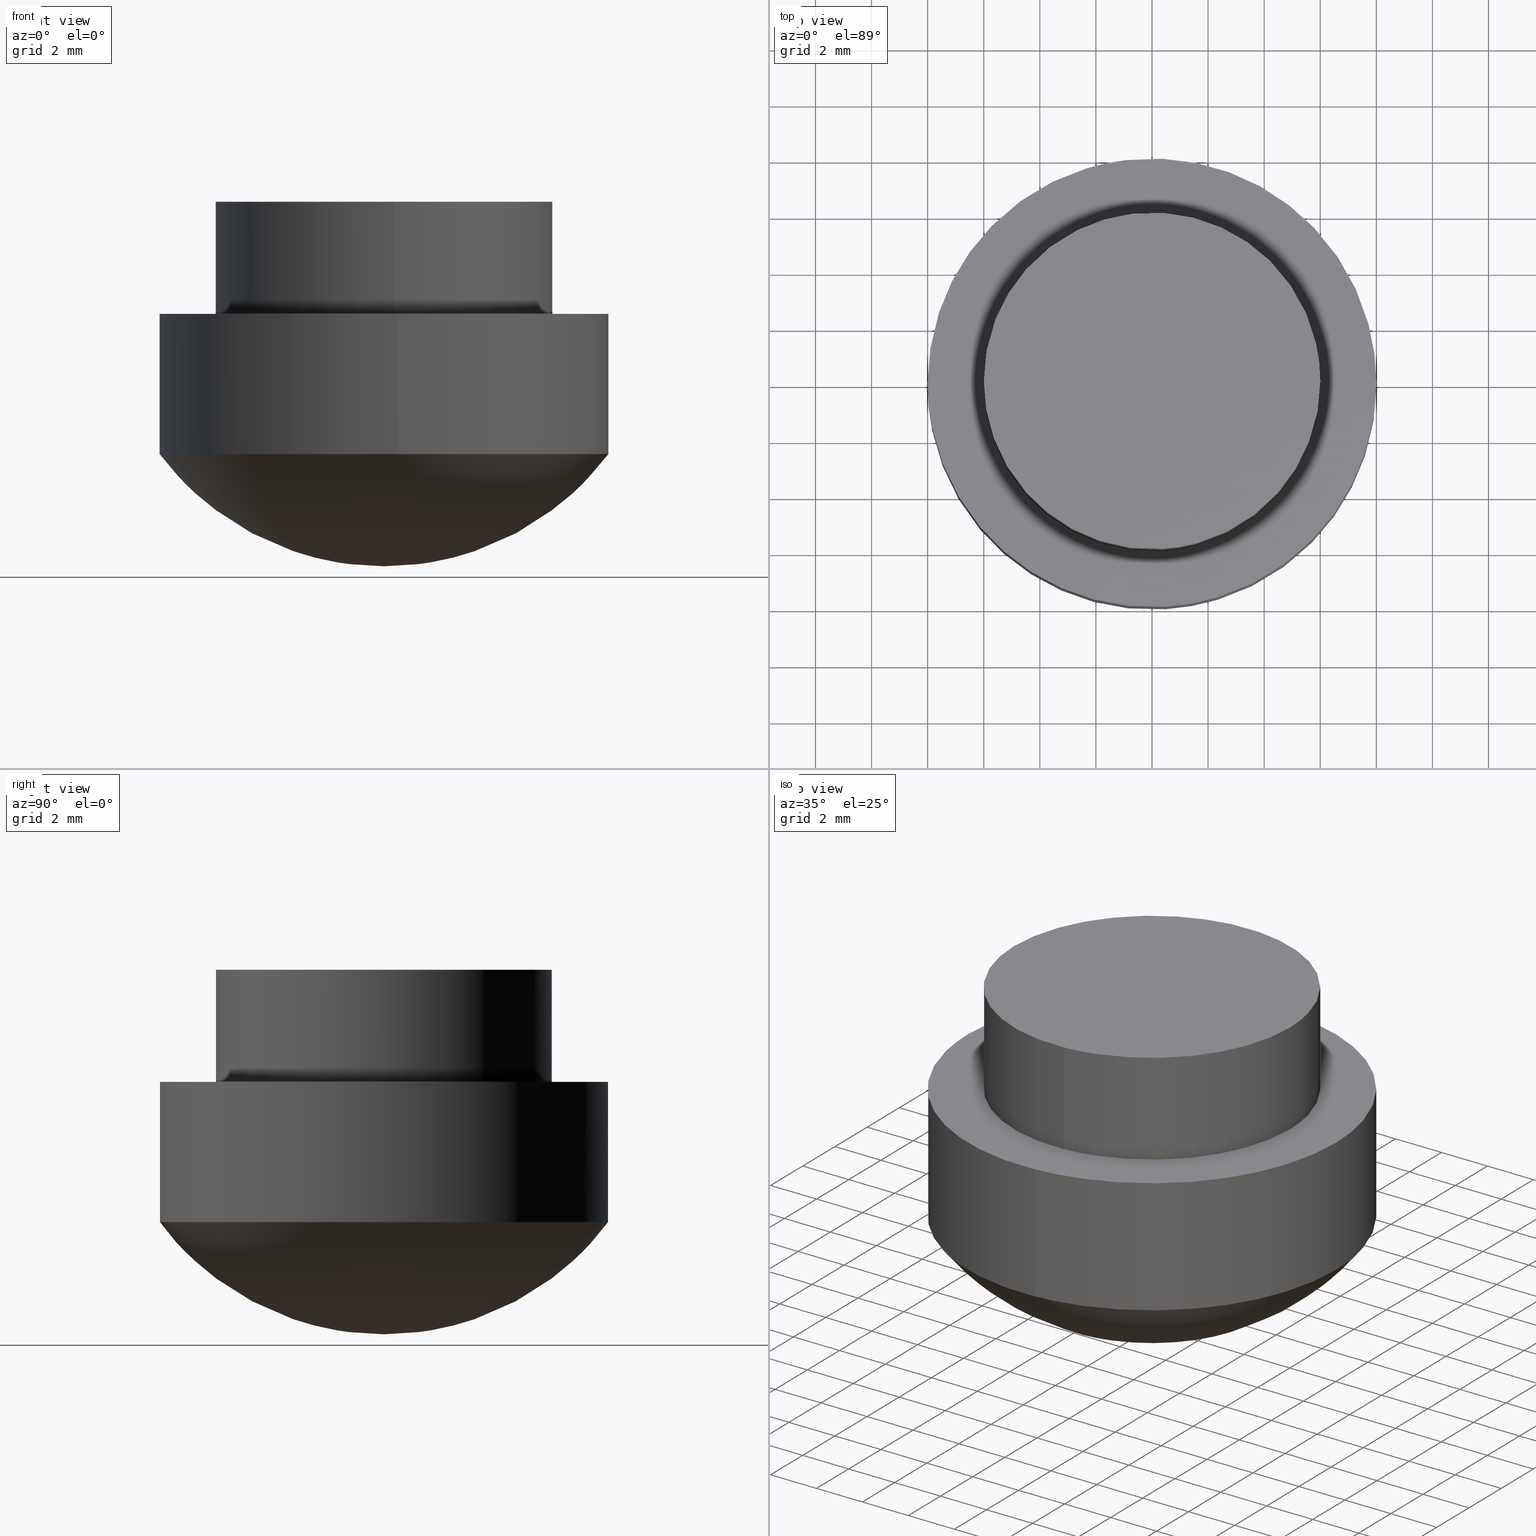
[diagram: canonical four-view strip — front | top / right | iso, engineering-drawing reading convention]
A machine part, canonical four-view strip (front | top / right | iso — engineering-drawing reading convention). The complete STEP part file that produces these views, byte-faithful:
ISO-10303-21;
HEADER;
/****************************************************************
 * Generated by software with PDE/Lib inside                    *
 * PDElib Version 4.4.1-0003, patched  Thursday August 19 11:58 *
 * International Technegroup Inc. (www.iti-oh.com)              *
 ****************************************************************/
FILE_DESCRIPTION((''),'2;1');
FILE_NAME('','2005-12-14T13:37:24',(''),(''),'','CADfix','');
FILE_SCHEMA(('AUTOMOTIVE_DESIGN'));
ENDSEC;
DATA;
#5=APPLICATION_CONTEXT('automotive design');
#6=APPLICATION_PROTOCOL_DEFINITION('Draft International Standard','automotive_design',1998,#5);
#7=PRODUCT_CONTEXT('None',#5,'mechanical');
#8=PRODUCT('rubber foot','','None',(#7));
#9=PRODUCT_RELATED_PRODUCT_CATEGORY('part','description',(#8));
#10=PRODUCT_DEFINITION_FORMATION('None','None',#8);
#11=PRODUCT_DEFINITION_CONTEXT('part definition',#5,'design');
#12=PRODUCT_DEFINITION('None','None',#10,#11);
#18=(NAMED_UNIT(*)PLANE_ANGLE_UNIT()SI_UNIT($,.RADIAN.));
#19=DIMENSIONAL_EXPONENTS(0.0,0.0,0.0,0.0,0.0,0.0,0.0);
#20=PLANE_ANGLE_MEASURE_WITH_UNIT(PLANE_ANGLE_MEASURE(0.017453292500000),#18);
#24=(CONVERSION_BASED_UNIT('DEGREE',#20)NAMED_UNIT(#19)PLANE_ANGLE_UNIT());
#28=(NAMED_UNIT(*)SI_UNIT($,.STERADIAN.)SOLID_ANGLE_UNIT());
#32=(LENGTH_UNIT()NAMED_UNIT(*)SI_UNIT(.MILLI.,.METRE.));
#34=UNCERTAINTY_MEASURE_WITH_UNIT(LENGTH_MEASURE(0.001000000000000),#32,'DISTANCE_ACCURACY_VALUE','');
#36=(GEOMETRIC_REPRESENTATION_CONTEXT(3)GLOBAL_UNCERTAINTY_ASSIGNED_CONTEXT((#34))GLOBAL_UNIT_ASSIGNED_CONTEXT((#24,#28,#32))REPRESENTATION_CONTEXT('None','None'));
#37=AXIS2_PLACEMENT_3D('',#38,#39,#40);
#38=CARTESIAN_POINT('',(0.0,0.0,0.0));
#39=DIRECTION('',(0.0,0.0,1.0));
#40=DIRECTION('',(1.0,0.0,0.0));
#41=ADVANCED_BREP_SHAPE_REPRESENTATION('',(#37,#478),#36);
#42=PRODUCT_DEFINITION_SHAPE('','',#12);
#43=SHAPE_DEFINITION_REPRESENTATION(#42,#41);
#44=CARTESIAN_POINT('',(-0.708205407940551,5.958057158181998,13.100000000000000));
#45=CARTESIAN_POINT('',(-0.537688371827866,5.978325692691634,13.100000000000000));
#46=CARTESIAN_POINT('',(-0.366291237209142,5.988808790531200,13.100000000000000));
#47=CARTESIAN_POINT('',(5.622517553322059,6.355100027740342,13.100000000000001));
#48=CARTESIAN_POINT('',(5.988808790531200,0.366291237209142,13.100000000000000));
#49=CARTESIAN_POINT('',(6.355100027740342,-5.622517553322059,13.100000000000001));
#50=CARTESIAN_POINT('',(0.366291237209142,-5.988808790531200,13.100000000000000));
#51=CARTESIAN_POINT('',(-0.708205407940551,5.958057158181998,8.897499999999997));
#52=CARTESIAN_POINT('',(-0.537688371827866,5.978325692691634,8.897499999999997));
#53=CARTESIAN_POINT('',(-0.366291237209142,5.988808790531200,8.897499999999997));
#54=CARTESIAN_POINT('',(5.622517553322059,6.355100027740342,8.897499999999997));
#55=CARTESIAN_POINT('',(5.988808790531200,0.366291237209142,8.897499999999997));
#56=CARTESIAN_POINT('',(6.355100027740342,-5.622517553322059,8.897499999999997));
#57=CARTESIAN_POINT('',(0.366291237209142,-5.988808790531200,8.897499999999997));
#65=(BOUNDED_SURFACE()B_SPLINE_SURFACE(2,1,((#44,#51),(#45,#52),(#46,#53),(#47,#54),(#48,#55),(#49,#56),(#50,#57)),.UNSPECIFIED.,.F.,.F.,.U.)B_SPLINE_SURFACE_WITH_KNOTS((3,2,2,3),(2,2),(0.0,0.397645019878172,10.338770516832451,20.279896013786729),(0.0,4.202500000000004),.UNSPECIFIED.)GEOMETRIC_REPRESENTATION_ITEM()RATIONAL_B_SPLINE_SURFACE(((0.977505800795127,0.977505800795127),(0.988284271247462,0.988284271247462),(1.0,1.0),(0.707106781186548,0.707106781186548),(1.0,1.0),(0.707106781186548,0.707106781186548),(1.0,1.0)))REPRESENTATION_ITEM('')SURFACE());
#66=CARTESIAN_POINT('',(-0.708199855991939,5.958057818110003,13.0));
#67=VERTEX_POINT('',#66);
#68=CARTESIAN_POINT('',(6.0,0.0,13.0));
#69=VERTEX_POINT('',#68);
#70=CARTESIAN_POINT('',(-0.708199855991939,5.958057818110003,13.000000000000004));
#71=CARTESIAN_POINT('',(-0.355341912590297,6.0,13.000000000000004));
#72=CARTESIAN_POINT('',(0.0,6.0,13.0));
#73=CARTESIAN_POINT('',(6.0,6.0,13.000000000000002));
#74=CARTESIAN_POINT('',(6.0,0.0,13.0));
#82=(BOUNDED_CURVE()B_SPLINE_CURVE(2,(#70,#71,#72,#73,#74),.UNSPECIFIED.,.F.,.U.)B_SPLINE_CURVE_WITH_KNOTS((3,2,3),(0.229562630999432,0.250000000000000,0.500000000000000),.UNSPECIFIED.)CURVE()GEOMETRIC_REPRESENTATION_ITEM()RATIONAL_B_SPLINE_CURVE((0.956027062862787,0.976056132837381,1.0,0.707106781186548,1.0))REPRESENTATION_ITEM(''));
#83=EDGE_CURVE('',#67,#69,#82,.T.);
#84=ORIENTED_EDGE('',*,*,#83,.T.);
#85=CARTESIAN_POINT('',(0.366286036583908,-5.988809108610534,13.000000000000020));
#86=VERTEX_POINT('',#85);
#87=CARTESIAN_POINT('',(6.0,0.0,13.0));
#88=CARTESIAN_POINT('',(6.0,-5.644241311996911,13.0));
#89=CARTESIAN_POINT('',(0.366286036583908,-5.988809108610534,13.000000000000021));
#97=(BOUNDED_CURVE()B_SPLINE_CURVE(2,(#87,#88,#89),.UNSPECIFIED.,.F.,.U.)B_SPLINE_CURVE_WITH_KNOTS((3,3),(0.500000000000000,0.739333112079995),.UNSPECIFIED.)CURVE()GEOMETRIC_REPRESENTATION_ITEM()RATIONAL_B_SPLINE_CURVE((1.0,0.719603817736998,0.976072362804825))REPRESENTATION_ITEM(''));
#98=EDGE_CURVE('',#69,#86,#97,.T.);
#99=ORIENTED_EDGE('',*,*,#98,.T.);
#100=CARTESIAN_POINT('',(0.366286099267417,-5.988809104776754,9.0));
#101=VERTEX_POINT('',#100);
#102=CARTESIAN_POINT('',(0.366286036583908,-5.988809108610534,13.000000000000020));
#103=CARTESIAN_POINT('',(0.366286099267417,-5.988809104776754,9.0));
#104=QUASI_UNIFORM_CURVE('',1,(#102,#103),.UNSPECIFIED.,.F.,.U.);
#105=EDGE_CURVE('',#86,#101,#104,.T.);
#106=ORIENTED_EDGE('',*,*,#105,.T.);
#107=CARTESIAN_POINT('',(6.0,0.0,9.0));
#108=VERTEX_POINT('',#107);
#109=CARTESIAN_POINT('',(6.0,0.0,9.0));
#110=CARTESIAN_POINT('',(6.000000000000001,-5.644241252809525,9.000000000000002));
#111=CARTESIAN_POINT('',(0.366286099267417,-5.988809104776754,9.0));
#119=(BOUNDED_CURVE()B_SPLINE_CURVE(2,(#109,#110,#111),.UNSPECIFIED.,.F.,.U.)B_SPLINE_CURVE_WITH_KNOTS((3,3),(0.500000000000000,0.739333110273986),.UNSPECIFIED.)CURVE()GEOMETRIC_REPRESENTATION_ITEM()RATIONAL_B_SPLINE_CURVE((1.0,0.719603819852869,0.976072358934200))REPRESENTATION_ITEM(''));
#120=EDGE_CURVE('',#108,#101,#119,.T.);
#121=ORIENTED_EDGE('',*,*,#120,.F.);
#122=CARTESIAN_POINT('',(-0.708199922886695,5.958057810158673,9.0));
#123=VERTEX_POINT('',#122);
#124=CARTESIAN_POINT('',(-0.708199922886695,5.958057810158673,9.0));
#125=CARTESIAN_POINT('',(-0.355341946391267,6.000000000000001,9.000000000000002));
#126=CARTESIAN_POINT('',(0.0,6.0,9.0));
#127=CARTESIAN_POINT('',(6.0,6.0,9.000000000000002));
#128=CARTESIAN_POINT('',(6.0,0.0,9.0));
#136=(BOUNDED_CURVE()B_SPLINE_CURVE(2,(#124,#125,#126,#127,#128),.UNSPECIFIED.,.F.,.U.)B_SPLINE_CURVE_WITH_KNOTS((3,2,3),(0.229562629101929,0.250000000000000,0.500000000000000),.UNSPECIFIED.)CURVE()GEOMETRIC_REPRESENTATION_ITEM()RATIONAL_B_SPLINE_CURVE((0.956027059143597,0.976056130614318,1.0,0.707106781186548,1.0))REPRESENTATION_ITEM(''));
#137=EDGE_CURVE('',#123,#108,#136,.T.);
#138=ORIENTED_EDGE('',*,*,#137,.F.);
#139=CARTESIAN_POINT('',(-0.708199855991939,5.958057818110003,13.0));
#140=CARTESIAN_POINT('',(-0.708199922886695,5.958057810158673,9.0));
#141=QUASI_UNIFORM_CURVE('',1,(#139,#140),.UNSPECIFIED.,.F.,.U.);
#142=EDGE_CURVE('',#67,#123,#141,.T.);
#143=ORIENTED_EDGE('',*,*,#142,.F.);
#144=EDGE_LOOP('',(#84,#99,#106,#121,#138,#143));
#145=FACE_OUTER_BOUND('',#144,.T.);
#146=ADVANCED_FACE('',(#145),#65,.T.);
#147=CARTESIAN_POINT('',(0.366291237209142,-5.988808790531200,13.100000000000000));
#148=CARTESIAN_POINT('',(-5.622517553322059,-6.355100027740342,13.100000000000001));
#149=CARTESIAN_POINT('',(-5.988808790531200,-0.366291237209142,13.100000000000000));
#150=CARTESIAN_POINT('',(-6.334717180395164,5.289260945037006,13.100000000000001));
#151=CARTESIAN_POINT('',(-0.708205407940551,5.958057158181998,13.100000000000000));
#152=CARTESIAN_POINT('',(0.366291237209142,-5.988808790531200,8.897499999999997));
#153=CARTESIAN_POINT('',(-5.622517553322059,-6.355100027740342,8.897499999999997));
#154=CARTESIAN_POINT('',(-5.988808790531200,-0.366291237209142,8.897499999999997));
#155=CARTESIAN_POINT('',(-6.334717180395164,5.289260945037006,8.897499999999997));
#156=CARTESIAN_POINT('',(-0.708205407940551,5.958057158181998,8.897499999999997));
#164=(BOUNDED_SURFACE()B_SPLINE_SURFACE(2,1,((#147,#152),(#148,#153),(#149,#154),(#150,#155),(#151,#156)),.UNSPECIFIED.,.F.,.F.,.U.)B_SPLINE_SURFACE_WITH_KNOTS((3,2,3),(2,2),(0.0,9.941125496954278,19.484605974030391),(0.0,4.202500000000004),.UNSPECIFIED.)GEOMETRIC_REPRESENTATION_ITEM()RATIONAL_B_SPLINE_SURFACE(((1.0,1.0),(0.707106781186548,0.707106781186548),(1.0,1.0),(0.718822509939086,0.718822509939086),(0.977505800795127,0.977505800795127)))REPRESENTATION_ITEM('')SURFACE());
#165=CARTESIAN_POINT('',(-6.0,0.0,13.0));
#166=VERTEX_POINT('',#165);
#167=CARTESIAN_POINT('',(-6.0,0.0,13.0));
#168=CARTESIAN_POINT('',(-6.000000000000001,5.329052156480185,13.000000000000002));
#169=CARTESIAN_POINT('',(-0.708199855991939,5.958057818110003,13.000000000000004));
#177=(BOUNDED_CURVE()B_SPLINE_CURVE(2,(#167,#168,#169),.UNSPECIFIED.,.F.,.U.)B_SPLINE_CURVE_WITH_KNOTS((3,3),(0.0,0.229562630999432),.UNSPECIFIED.)CURVE()GEOMETRIC_REPRESENTATION_ITEM()RATIONAL_B_SPLINE_CURVE((1.0,0.731050648349166,0.956027062862787))REPRESENTATION_ITEM(''));
#178=EDGE_CURVE('',#166,#67,#177,.T.);
#179=ORIENTED_EDGE('',*,*,#178,.T.);
#180=ORIENTED_EDGE('',*,*,#142,.T.);
#181=CARTESIAN_POINT('',(-6.0,0.0,9.0));
#182=VERTEX_POINT('',#181);
#183=CARTESIAN_POINT('',(-6.0,0.0,9.0));
#184=CARTESIAN_POINT('',(-6.000000000000001,5.329052096226471,9.000000000000002));
#185=CARTESIAN_POINT('',(-0.708199922886695,5.958057810158673,9.0));
#193=(BOUNDED_CURVE()B_SPLINE_CURVE(2,(#183,#184,#185),.UNSPECIFIED.,.F.,.U.)B_SPLINE_CURVE_WITH_KNOTS((3,3),(0.0,0.229562629101929),.UNSPECIFIED.)CURVE()GEOMETRIC_REPRESENTATION_ITEM()RATIONAL_B_SPLINE_CURVE((1.0,0.731050650572230,0.956027059143597))REPRESENTATION_ITEM(''));
#194=EDGE_CURVE('',#182,#123,#193,.T.);
#195=ORIENTED_EDGE('',*,*,#194,.F.);
#196=CARTESIAN_POINT('',(0.366286099267417,-5.988809104776754,9.0));
#197=CARTESIAN_POINT('',(0.183314003617696,-6.0,9.0));
#198=CARTESIAN_POINT('',(0.0,-6.0,9.0));
#199=CARTESIAN_POINT('',(-6.0,-6.0,9.000000000000002));
#200=CARTESIAN_POINT('',(-6.0,0.0,9.0));
#208=(BOUNDED_CURVE()B_SPLINE_CURVE(2,(#196,#197,#198,#199,#200),.UNSPECIFIED.,.F.,.U.)B_SPLINE_CURVE_WITH_KNOTS((3,2,3),(0.739333110273986,0.750000000000000,1.0),.UNSPECIFIED.)CURVE()GEOMETRIC_REPRESENTATION_ITEM()RATIONAL_B_SPLINE_CURVE((0.976072358934200,0.987502961333678,1.0,0.707106781186548,1.0))REPRESENTATION_ITEM(''));
#209=EDGE_CURVE('',#101,#182,#208,.T.);
#210=ORIENTED_EDGE('',*,*,#209,.F.);
#211=ORIENTED_EDGE('',*,*,#105,.F.);
#212=CARTESIAN_POINT('',(0.366286036583908,-5.988809108610534,13.000000000000021));
#213=CARTESIAN_POINT('',(0.183313972188067,-6.0,13.000000000000002));
#214=CARTESIAN_POINT('',(0.0,-6.0,13.0));
#215=CARTESIAN_POINT('',(-6.0,-6.0,13.000000000000002));
#216=CARTESIAN_POINT('',(-6.0,0.0,13.0));
#224=(BOUNDED_CURVE()B_SPLINE_CURVE(2,(#212,#213,#214,#215,#216),.UNSPECIFIED.,.F.,.U.)B_SPLINE_CURVE_WITH_KNOTS((3,2,3),(0.739333112079995,0.750000000000000,1.0),.UNSPECIFIED.)CURVE()GEOMETRIC_REPRESENTATION_ITEM()RATIONAL_B_SPLINE_CURVE((0.976072362804825,0.987502963449549,1.0,0.707106781186548,1.0))REPRESENTATION_ITEM(''));
#225=EDGE_CURVE('',#86,#166,#224,.T.);
#226=ORIENTED_EDGE('',*,*,#225,.T.);
#227=EDGE_LOOP('',(#179,#180,#195,#210,#211,#226));
#228=FACE_OUTER_BOUND('',#227,.T.);
#229=ADVANCED_FACE('',(#228),#164,.T.);
#230=CARTESIAN_POINT('',(-0.944273875065293,7.944076192495398,9.125000001236240));
#231=CARTESIAN_POINT('',(-0.716917827442045,7.971100905112271,9.125000001236238));
#232=CARTESIAN_POINT('',(-0.488388315146799,7.985078368865961,9.125000001236240));
#233=CARTESIAN_POINT('',(7.496690053719162,8.473466684012760,9.125000001236240));
#234=CARTESIAN_POINT('',(7.985078368865961,0.488388315146799,9.125000001236240));
#235=CARTESIAN_POINT('',(8.473466684012760,-7.496690053719162,9.125000001236240));
#236=CARTESIAN_POINT('',(0.488388315146799,-7.985078368865961,9.125000001236240));
#237=CARTESIAN_POINT('',(-0.944273875065293,7.944076192495398,3.871874949283356));
#238=CARTESIAN_POINT('',(-0.716917827442045,7.971100905112271,3.871874949283356));
#239=CARTESIAN_POINT('',(-0.488388315146799,7.985078368865961,3.871874949283356));
#240=CARTESIAN_POINT('',(7.496690053719162,8.473466684012760,3.871874949283356));
#241=CARTESIAN_POINT('',(7.985078368865961,0.488388315146799,3.871874949283356));
#242=CARTESIAN_POINT('',(8.473466684012760,-7.496690053719162,3.871874949283356));
#243=CARTESIAN_POINT('',(0.488388315146799,-7.985078368865961,3.871874949283356));
#251=(BOUNDED_SURFACE()B_SPLINE_SURFACE(2,1,((#230,#237),(#231,#238),(#232,#239),(#233,#240),(#234,#241),(#235,#242),(#236,#243)),.UNSPECIFIED.,.F.,.F.,.U.)B_SPLINE_SURFACE_WITH_KNOTS((3,2,2,3),(2,2),(0.0,0.530193358608603,13.785027323823661,27.039861289038729),(0.0,5.253125051952884),.UNSPECIFIED.)GEOMETRIC_REPRESENTATION_ITEM()RATIONAL_B_SPLINE_SURFACE(((0.977505800795127,0.977505800795127),(0.988284271247462,0.988284271247462),(1.0,1.0),(0.707106781186548,0.707106781186548),(1.0,1.0),(0.707106781186548,0.707106781186548),(1.0,1.0)))REPRESENTATION_ITEM('')SURFACE());
#252=CARTESIAN_POINT('',(-0.944268818896609,7.944076802831477,8.999999999999961));
#253=VERTEX_POINT('',#252);
#254=CARTESIAN_POINT('',(8.0,0.0,9.0));
#255=VERTEX_POINT('',#254);
#256=CARTESIAN_POINT('',(-0.944268818896609,7.944076802831477,8.999999999999961));
#257=CARTESIAN_POINT('',(-0.473790401851614,8.0,9.0));
#258=CARTESIAN_POINT('',(0.0,8.0,9.0));
#259=CARTESIAN_POINT('',(8.0,8.0,9.000000000000002));
#260=CARTESIAN_POINT('',(8.0,0.0,9.0));
#268=(BOUNDED_CURVE()B_SPLINE_CURVE(2,(#256,#257,#258,#259,#260),.UNSPECIFIED.,.F.,.U.)B_SPLINE_CURVE_WITH_KNOTS((3,2,3),(0.229562581104482,0.250000000000000,0.500000000000000),.UNSPECIFIED.)CURVE()GEOMETRIC_REPRESENTATION_ITEM()RATIONAL_B_SPLINE_CURVE((0.956026965066519,0.976056074381811,1.0,0.707106781186548,1.0))REPRESENTATION_ITEM(''));
#269=EDGE_CURVE('',#253,#255,#268,.T.);
#270=ORIENTED_EDGE('',*,*,#269,.T.);
#271=CARTESIAN_POINT('',(0.488385459123709,-7.985078552835898,8.999999999999979));
#272=VERTEX_POINT('',#271);
#273=CARTESIAN_POINT('',(8.0,0.0,9.0));
#274=CARTESIAN_POINT('',(8.0,-7.525651232509167,9.0));
#275=CARTESIAN_POINT('',(0.488385459123709,-7.985078552835898,8.999999999999979));
#283=(BOUNDED_CURVE()B_SPLINE_CURVE(2,(#273,#274,#275),.UNSPECIFIED.,.F.,.U.)B_SPLINE_CURVE_WITH_KNOTS((3,3),(0.500000000000000,0.739333023969015),.UNSPECIFIED.)CURVE()GEOMETRIC_REPRESENTATION_ITEM()RATIONAL_B_SPLINE_CURVE((1.0,0.719603920965432,0.976072173966049))REPRESENTATION_ITEM(''));
#284=EDGE_CURVE('',#255,#272,#283,.T.);
#285=ORIENTED_EDGE('',*,*,#284,.T.);
#286=CARTESIAN_POINT('',(0.488385492346112,-7.985078532225735,3.999999950550500));
#287=VERTEX_POINT('',#286);
#288=CARTESIAN_POINT('',(0.488385459123709,-7.985078552835898,8.999999999999979));
#289=CARTESIAN_POINT('',(0.488385492346112,-7.985078532225735,3.999999950550500));
#290=QUASI_UNIFORM_CURVE('',1,(#288,#289),.UNSPECIFIED.,.F.,.U.);
#291=EDGE_CURVE('',#272,#287,#290,.T.);
#292=ORIENTED_EDGE('',*,*,#291,.T.);
#293=CARTESIAN_POINT('',(7.999999962912870,0.0,3.999999950550500));
#294=VERTEX_POINT('',#293);
#295=CARTESIAN_POINT('',(7.999999962912870,0.0,3.999999950550500));
#296=CARTESIAN_POINT('',(7.999999962912870,-7.525651165182715,3.999999950550501));
#297=CARTESIAN_POINT('',(0.488385492346112,-7.985078532225735,3.999999950550500));
#305=(BOUNDED_CURVE()B_SPLINE_CURVE(2,(#295,#296,#297),.UNSPECIFIED.,.F.,.U.)B_SPLINE_CURVE_WITH_KNOTS((3,3),(0.500000000000000,0.739333023226661),.UNSPECIFIED.)CURVE()GEOMETRIC_REPRESENTATION_ITEM()RATIONAL_B_SPLINE_CURVE((1.0,0.719603921835154,0.976072172375043))REPRESENTATION_ITEM(''));
#306=EDGE_CURVE('',#294,#287,#305,.T.);
#307=ORIENTED_EDGE('',*,*,#306,.F.);
#308=CARTESIAN_POINT('',(-0.944268877604578,7.944076777179117,3.999999950550500));
#309=VERTEX_POINT('',#308);
#310=CARTESIAN_POINT('',(-0.944268877604578,7.944076777179117,3.999999950550499));
#311=CARTESIAN_POINT('',(-0.473790430425430,7.999999962912871,3.999999950550500));
#312=CARTESIAN_POINT('',(0.0,7.999999962912870,3.999999950550500));
#313=CARTESIAN_POINT('',(7.999999962912870,7.999999962912870,3.999999950550501));
#314=CARTESIAN_POINT('',(7.999999962912870,0.0,3.999999950550500));
#322=(BOUNDED_CURVE()B_SPLINE_CURVE(2,(#310,#311,#312,#313,#314),.UNSPECIFIED.,.F.,.U.)B_SPLINE_CURVE_WITH_KNOTS((3,2,3),(0.229562579808957,0.250000000000000,0.500000000000000),.UNSPECIFIED.)CURVE()GEOMETRIC_REPRESENTATION_ITEM()RATIONAL_B_SPLINE_CURVE((0.956026962527235,0.976056072864010,1.0,0.707106781186548,1.0))REPRESENTATION_ITEM(''));
#323=EDGE_CURVE('',#309,#294,#322,.T.);
#324=ORIENTED_EDGE('',*,*,#323,.F.);
#325=CARTESIAN_POINT('',(-0.944268818896609,7.944076802831477,8.999999999999961));
#326=CARTESIAN_POINT('',(-0.944268877604578,7.944076777179117,3.999999950550500));
#327=QUASI_UNIFORM_CURVE('',1,(#325,#326),.UNSPECIFIED.,.F.,.U.);
#328=EDGE_CURVE('',#253,#309,#327,.T.);
#329=ORIENTED_EDGE('',*,*,#328,.F.);
#330=EDGE_LOOP('',(#270,#285,#292,#307,#324,#329));
#331=FACE_OUTER_BOUND('',#330,.T.);
#332=ADVANCED_FACE('',(#331),#251,.T.);
#333=CARTESIAN_POINT('',(0.488388315146799,-7.985078368865961,9.125000001236240));
#334=CARTESIAN_POINT('',(-7.496690053719162,-8.473466684012760,9.125000001236240));
#335=CARTESIAN_POINT('',(-7.985078368865961,-0.488388315146799,9.125000001236240));
#336=CARTESIAN_POINT('',(-8.446289554282185,7.052347910369052,9.125000001236240));
#337=CARTESIAN_POINT('',(-0.944273875065293,7.944076192495398,9.125000001236240));
#338=CARTESIAN_POINT('',(0.488388315146799,-7.985078368865961,3.871874949283356));
#339=CARTESIAN_POINT('',(-7.496690053719162,-8.473466684012760,3.871874949283356));
#340=CARTESIAN_POINT('',(-7.985078368865961,-0.488388315146799,3.871874949283356));
#341=CARTESIAN_POINT('',(-8.446289554282185,7.052347910369052,3.871874949283356));
#342=CARTESIAN_POINT('',(-0.944273875065293,7.944076192495398,3.871874949283356));
#350=(BOUNDED_SURFACE()B_SPLINE_SURFACE(2,1,((#333,#338),(#334,#339),(#335,#340),(#336,#341),(#337,#342)),.UNSPECIFIED.,.F.,.F.,.U.)B_SPLINE_SURFACE_WITH_KNOTS((3,2,3),(2,2),(0.0,13.254833965215060,25.979474571821520),(0.0,5.253125051952884),.UNSPECIFIED.)GEOMETRIC_REPRESENTATION_ITEM()RATIONAL_B_SPLINE_SURFACE(((1.0,1.0),(0.707106781186548,0.707106781186548),(1.0,1.0),(0.718822509939086,0.718822509939086),(0.977505800795127,0.977505800795127)))REPRESENTATION_ITEM('')SURFACE());
#351=CARTESIAN_POINT('',(-8.0,0.0,9.0));
#352=VERTEX_POINT('',#351);
#353=CARTESIAN_POINT('',(-8.0,0.0,9.0));
#354=CARTESIAN_POINT('',(-8.0,7.105400762807472,9.0));
#355=CARTESIAN_POINT('',(-0.944268818896609,7.944076802831477,8.999999999999961));
#363=(BOUNDED_CURVE()B_SPLINE_CURVE(2,(#353,#354,#355),.UNSPECIFIED.,.F.,.U.)B_SPLINE_CURVE_WITH_KNOTS((3,3),(0.0,0.229562581104482),.UNSPECIFIED.)CURVE()GEOMETRIC_REPRESENTATION_ITEM()RATIONAL_B_SPLINE_CURVE((1.0,0.731050706804736,0.956026965066519))REPRESENTATION_ITEM(''));
#364=EDGE_CURVE('',#352,#253,#363,.T.);
#365=ORIENTED_EDGE('',*,*,#364,.T.);
#366=ORIENTED_EDGE('',*,*,#328,.T.);
#367=CARTESIAN_POINT('',(-7.999999962912870,0.0,3.999999950550500));
#368=VERTEX_POINT('',#367);
#369=CARTESIAN_POINT('',(-7.999999962912870,0.0,3.999999950550500));
#370=CARTESIAN_POINT('',(-7.999999962912868,7.105400675016465,3.999999950550500));
#371=CARTESIAN_POINT('',(-0.944268877604578,7.944076777179117,3.999999950550499));
#379=(BOUNDED_CURVE()B_SPLINE_CURVE(2,(#369,#370,#371),.UNSPECIFIED.,.F.,.U.)B_SPLINE_CURVE_WITH_KNOTS((3,3),(0.0,0.229562579808957),.UNSPECIFIED.)CURVE()GEOMETRIC_REPRESENTATION_ITEM()RATIONAL_B_SPLINE_CURVE((1.0,0.731050708322538,0.956026962527235))REPRESENTATION_ITEM(''));
#380=EDGE_CURVE('',#368,#309,#379,.T.);
#381=ORIENTED_EDGE('',*,*,#380,.F.);
#382=CARTESIAN_POINT('',(0.488385492346112,-7.985078532225735,3.999999950550500));
#383=CARTESIAN_POINT('',(0.244420690181673,-7.999999962912870,3.999999950550500));
#384=CARTESIAN_POINT('',(0.0,-7.999999962912870,3.999999950550500));
#385=CARTESIAN_POINT('',(-7.999999962912870,-7.999999962912870,3.999999950550501));
#386=CARTESIAN_POINT('',(-7.999999962912870,0.0,3.999999950550500));
#394=(BOUNDED_CURVE()B_SPLINE_CURVE(2,(#382,#383,#384,#385,#386),.UNSPECIFIED.,.F.,.U.)B_SPLINE_CURVE_WITH_KNOTS((3,2,3),(0.739333023226661,0.750000000000000,1.0),.UNSPECIFIED.)CURVE()GEOMETRIC_REPRESENTATION_ITEM()RATIONAL_B_SPLINE_CURVE((0.976072172375043,0.987502859351394,1.0,0.707106781186548,1.0))REPRESENTATION_ITEM(''));
#395=EDGE_CURVE('',#287,#368,#394,.T.);
#396=ORIENTED_EDGE('',*,*,#395,.F.);
#397=ORIENTED_EDGE('',*,*,#291,.F.);
#398=CARTESIAN_POINT('',(0.488385459123709,-7.985078552835898,8.999999999999979));
#399=CARTESIAN_POINT('',(0.244420674089390,-8.0,9.0));
#400=CARTESIAN_POINT('',(0.0,-8.0,9.0));
#401=CARTESIAN_POINT('',(-8.0,-8.0,9.000000000000002));
#402=CARTESIAN_POINT('',(-8.0,0.0,9.0));
#410=(BOUNDED_CURVE()B_SPLINE_CURVE(2,(#398,#399,#400,#401,#402),.UNSPECIFIED.,.F.,.U.)B_SPLINE_CURVE_WITH_KNOTS((3,2,3),(0.739333023969015,0.750000000000000,1.0),.UNSPECIFIED.)CURVE()GEOMETRIC_REPRESENTATION_ITEM()RATIONAL_B_SPLINE_CURVE((0.976072173966049,0.987502860221115,1.0,0.707106781186548,1.0))REPRESENTATION_ITEM(''));
#411=EDGE_CURVE('',#272,#352,#410,.T.);
#412=ORIENTED_EDGE('',*,*,#411,.T.);
#413=EDGE_LOOP('',(#365,#366,#381,#396,#397,#412));
#414=FACE_OUTER_BOUND('',#413,.T.);
#415=ADVANCED_FACE('',(#414),#350,.T.);
#416=CARTESIAN_POINT('',(-6.599399976741671,-6.599253942074771,13.0));
#417=CARTESIAN_POINT('',(6.599400298606753,-6.599253942074771,13.0));
#418=CARTESIAN_POINT('',(-6.599399976741671,6.599290849270816,13.0));
#419=CARTESIAN_POINT('',(6.599400298606753,6.599290849270816,13.0));
#420=B_SPLINE_SURFACE_WITH_KNOTS('',1,1,((#416,#418),(#417,#419)),.UNSPECIFIED.,.F.,.F.,.U.,(2,2),(2,2),(0.0,13.198800275348420),(0.0,13.198544791345590),.UNSPECIFIED.);
#421=ORIENTED_EDGE('',*,*,#225,.F.);
#422=ORIENTED_EDGE('',*,*,#98,.F.);
#423=ORIENTED_EDGE('',*,*,#83,.F.);
#424=ORIENTED_EDGE('',*,*,#178,.F.);
#425=EDGE_LOOP('',(#421,#422,#423,#424));
#426=FACE_OUTER_BOUND('',#425,.T.);
#427=ADVANCED_FACE('',(#426),#420,.T.);
#428=CARTESIAN_POINT('',(-8.799199968988896,-8.799005706689359,9.0));
#429=CARTESIAN_POINT('',(8.799200398142338,-8.799005706689359,9.0));
#430=CARTESIAN_POINT('',(-8.799199968988896,8.799054487130642,9.0));
#431=CARTESIAN_POINT('',(8.799200398142338,8.799054487130642,9.0));
#432=B_SPLINE_SURFACE_WITH_KNOTS('',1,1,((#428,#430),(#429,#431)),.UNSPECIFIED.,.F.,.F.,.U.,(2,2),(2,2),(0.0,17.598400367131230),(0.0,17.598060193820000),.UNSPECIFIED.);
#433=ORIENTED_EDGE('',*,*,#411,.F.);
#434=ORIENTED_EDGE('',*,*,#284,.F.);
#435=ORIENTED_EDGE('',*,*,#269,.F.);
#436=ORIENTED_EDGE('',*,*,#364,.F.);
#437=EDGE_LOOP('',(#433,#434,#435,#436));
#438=FACE_OUTER_BOUND('',#437,.T.);
#439=ORIENTED_EDGE('',*,*,#120,.T.);
#440=ORIENTED_EDGE('',*,*,#209,.T.);
#441=ORIENTED_EDGE('',*,*,#194,.T.);
#442=ORIENTED_EDGE('',*,*,#137,.T.);
#443=EDGE_LOOP('',(#439,#440,#441,#442));
#444=FACE_BOUND('',#443,.T.);
#445=ADVANCED_FACE('',(#438,#444),#432,.T.);
#446=CARTESIAN_POINT('',(-6.853471896327415,6.853358555659610,7.538009042701919));
#447=CARTESIAN_POINT('',(-4.222475611669984,8.444811489568490,4.644147270144297));
#448=CARTESIAN_POINT('',(4.222475835462554,8.444811489568490,4.644147187664597));
#449=CARTESIAN_POINT('',(6.853472180370921,6.853358354755898,7.538009274148398));
#450=CARTESIAN_POINT('',(-8.444886322699713,4.222373322646664,4.644265225807698));
#451=CARTESIAN_POINT('',(-5.499500022563311,5.499408999574950,0.000000056774758));
#452=CARTESIAN_POINT('',(5.499500254962466,5.499408999574950,-0.000000050649690));
#453=CARTESIAN_POINT('',(8.444886569857316,4.222373170127541,4.644265615524161));
#454=CARTESIAN_POINT('',(-8.444886322699713,-4.222349674945175,4.644265221104967));
#455=CARTESIAN_POINT('',(-5.499500022563311,-5.499378196375985,0.000000050649710));
#456=CARTESIAN_POINT('',(5.499500254962466,-5.499378196375985,-0.000000056774738));
#457=CARTESIAN_POINT('',(8.444886569857316,-4.222349522426905,4.644265610821430));
#458=CARTESIAN_POINT('',(-6.853486359133368,-6.853334642363947,7.537982736667539));
#459=CARTESIAN_POINT('',(-4.222486591504515,-8.444786158949555,4.644107330438700));
#460=CARTESIAN_POINT('',(4.222486815297158,-8.444786158949555,4.644107247958783));
#461=CARTESIAN_POINT('',(6.853486643176638,-6.853334441460513,7.537982968115278));
#469=(BOUNDED_SURFACE()B_SPLINE_SURFACE(2,2,((#446,#450,#454,#458),(#447,#451,#455,#459),(#448,#452,#456,#460),(#449,#453,#457,#461)),.UNSPECIFIED.,.F.,.F.,.U.)B_SPLINE_SURFACE_WITH_KNOTS((3,1,3),(3,1,3),(0.156834663450718,9.669483172510137,19.182132421433931),(0.156991949313879,9.669483172510134,19.181921133762600),.UNSPECIFIED.)GEOMETRIC_REPRESENTATION_ITEM()RATIONAL_B_SPLINE_SURFACE(((1.604879987072847,1.302444994239294,1.302444994239294,1.604876600319553),(1.302434992833554,1.0,1.0,1.302431606080259),(1.302434992833554,1.0,1.0,1.302431606080259),(1.604880034119321,1.302445041285768,1.302445041285768,1.604876647366027)))REPRESENTATION_ITEM('')SURFACE());
#470=ORIENTED_EDGE('',*,*,#380,.T.);
#471=ORIENTED_EDGE('',*,*,#323,.T.);
#472=ORIENTED_EDGE('',*,*,#306,.T.);
#473=ORIENTED_EDGE('',*,*,#395,.T.);
#474=EDGE_LOOP('',(#470,#471,#472,#473));
#475=FACE_OUTER_BOUND('',#474,.T.);
#476=ADVANCED_FACE('',(#475),#469,.T.);
#477=CLOSED_SHELL('',(#146,#229,#332,#415,#427,#445,#476));
#478=MANIFOLD_SOLID_BREP('rubber foot',#477);
#484=(NAMED_UNIT(*)PLANE_ANGLE_UNIT()SI_UNIT($,.RADIAN.));
#485=DIMENSIONAL_EXPONENTS(0.0,0.0,0.0,0.0,0.0,0.0,0.0);
#486=PLANE_ANGLE_MEASURE_WITH_UNIT(PLANE_ANGLE_MEASURE(0.017453292500000),#484);
#490=(CONVERSION_BASED_UNIT('DEGREE',#486)NAMED_UNIT(#485)PLANE_ANGLE_UNIT());
#494=(NAMED_UNIT(*)SI_UNIT($,.STERADIAN.)SOLID_ANGLE_UNIT());
#498=(LENGTH_UNIT()NAMED_UNIT(*)SI_UNIT(.MILLI.,.METRE.));
#500=UNCERTAINTY_MEASURE_WITH_UNIT(LENGTH_MEASURE(0.001000000000000),#498,'DISTANCE_ACCURACY_VALUE','');
#502=(GEOMETRIC_REPRESENTATION_CONTEXT(3)GLOBAL_UNCERTAINTY_ASSIGNED_CONTEXT((#500))GLOBAL_UNIT_ASSIGNED_CONTEXT((#490,#494,#498))REPRESENTATION_CONTEXT('','3D'));
ENDSEC;
END-ISO-10303-21;
